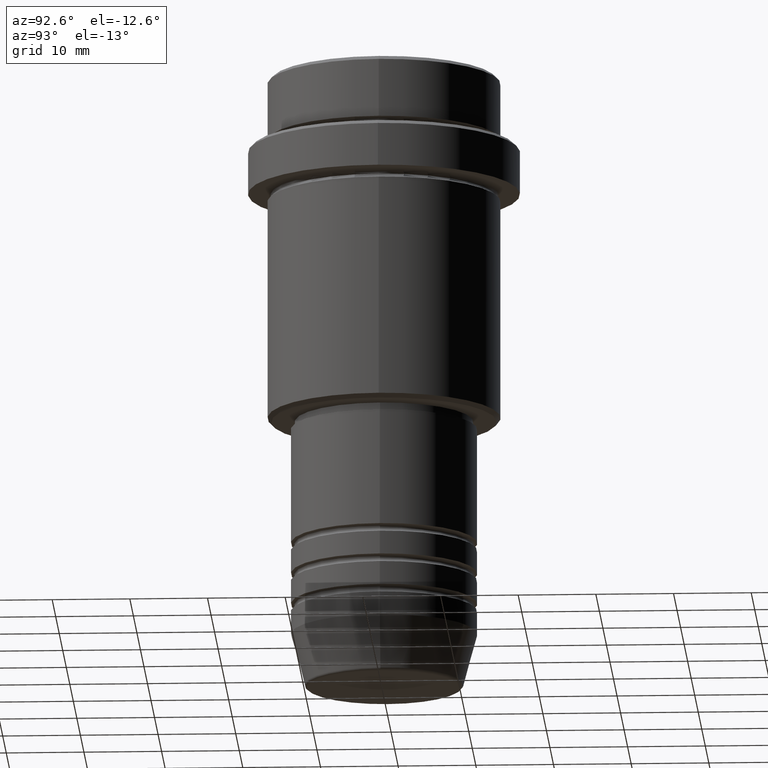
[diagram: clean part render]
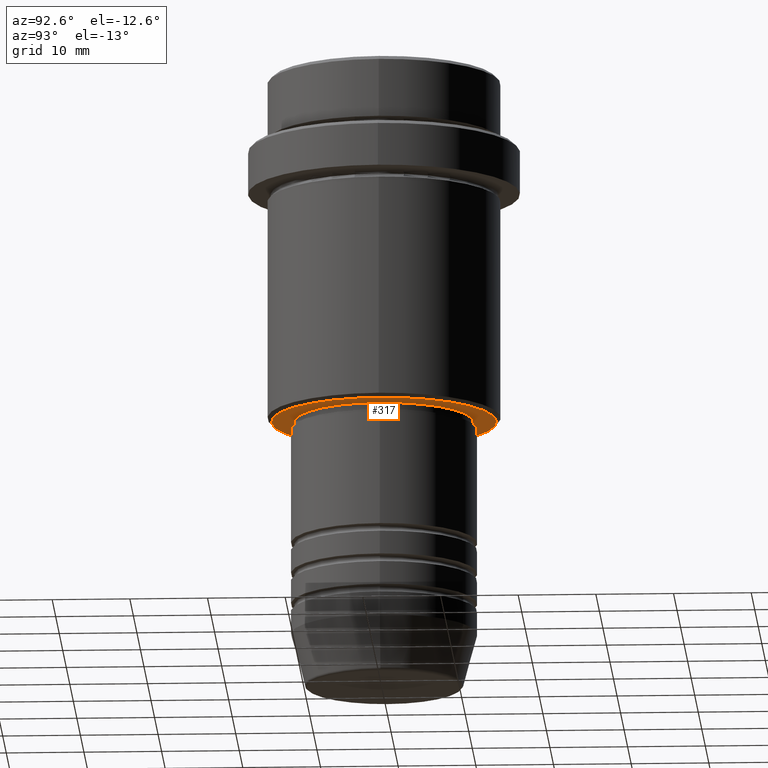
[diagram: same view with one face highlighted and labeled with its STEP entity id]
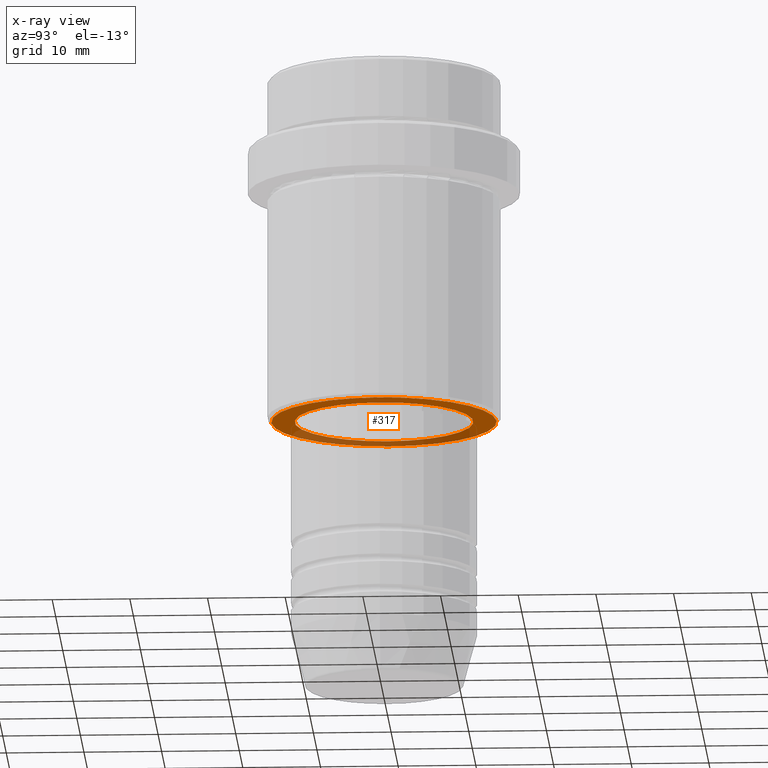
[diagram: x-ray of the same camera — body ghosted, the highlighted face saturated]
A machine part, auxiliary view. The second image highlights one B-rep face of the part: STEP entity #317.
The next image is the same camera in x-ray: the body ghosted, the highlighted face saturated — about 34% of this face is hidden behind the body in this view.
In plain terms, the highlighted planar face has unit normal (0, 0, -1).
Its self-contained STEP definition (entity closure, byte-faithful):
#57 = EDGE_LOOP ( 'NONE', ( #383, #411 ) ) ;
#126 = CIRCLE ( 'NONE', #614, 14.49999999999998401 ) ;
#146 = DIRECTION ( 'NONE',  ( -1.000000000000000000, 0.000000000000000000, -0.000000000000000000 ) ) ;
#156 = AXIS2_PLACEMENT_3D ( 'NONE', #955, #420, #187 ) ;
#187 = DIRECTION ( 'NONE',  ( 1.000000000000000000, 0.000000000000000000, 0.000000000000000000 ) ) ;
#190 = EDGE_CURVE ( 'NONE', #1326, #433, #126, .T. ) ;
#205 = DIRECTION ( 'NONE',  ( 0.000000000000000000, 0.000000000000000000, -1.000000000000000000 ) ) ;
#277 = CARTESIAN_POINT ( 'NONE',  ( 0.000000000000000000, 0.000000000000000000, -45.00000000000000000 ) ) ;
#317 = ADVANCED_FACE ( 'NONE', ( #995, #455 ), #1135, .T. ) ;
#362 = VERTEX_POINT ( 'NONE', #928 ) ;
#383 = ORIENTED_EDGE ( 'NONE', *, *, #190, .T. ) ;
#411 = ORIENTED_EDGE ( 'NONE', *, *, #718, .T. ) ;
#420 = DIRECTION ( 'NONE',  ( -0.000000000000000000, -0.000000000000000000, 1.000000000000000000 ) ) ;
#433 = VERTEX_POINT ( 'NONE', #712 ) ;
#455 = FACE_BOUND ( 'NONE', #748, .T. ) ;
#467 = CIRCLE ( 'NONE', #1252, 11.49999999999999467 ) ;
#595 = VERTEX_POINT ( 'NONE', #626 ) ;
#614 = AXIS2_PLACEMENT_3D ( 'NONE', #1193, #205, #1117 ) ;
#626 = CARTESIAN_POINT ( 'NONE',  ( 11.49999999999999467, 0.000000000000000000, -45.00000000000000000 ) ) ;
#652 = CARTESIAN_POINT ( 'NONE',  ( 0.000000000000000000, 15.00000000000000000, -45.00000000000000000 ) ) ;
#667 = CARTESIAN_POINT ( 'NONE',  ( 0.000000000000000000, 0.000000000000000000, -45.00000000000000000 ) ) ;
#712 = CARTESIAN_POINT ( 'NONE',  ( -14.49999999999998401, 1.806354028742345013E-15, -45.00000000000000000 ) ) ;
#718 = EDGE_CURVE ( 'NONE', #433, #1326, #1208, .T. ) ;
#748 = EDGE_LOOP ( 'NONE', ( #805, #1372 ) ) ;
#801 = EDGE_CURVE ( 'NONE', #362, #595, #467, .T. ) ;
#805 = ORIENTED_EDGE ( 'NONE', *, *, #1410, .T. ) ;
#885 = DIRECTION ( 'NONE',  ( 0.000000000000000000, 0.000000000000000000, -1.000000000000000000 ) ) ;
#892 = AXIS2_PLACEMENT_3D ( 'NONE', #652, #885, #146 ) ;
#928 = CARTESIAN_POINT ( 'NONE',  ( -11.49999999999999467, 1.408343819019455781E-15, -45.00000000000000000 ) ) ;
#955 = CARTESIAN_POINT ( 'NONE',  ( 0.000000000000000000, 0.000000000000000000, -45.00000000000000000 ) ) ;
#995 = FACE_OUTER_BOUND ( 'NONE', #57, .T. ) ;
#1013 = CIRCLE ( 'NONE', #156, 11.49999999999999467 ) ;
#1022 = DIRECTION ( 'NONE',  ( 0.000000000000000000, 0.000000000000000000, -1.000000000000000000 ) ) ;
#1117 = DIRECTION ( 'NONE',  ( -1.000000000000000000, 0.000000000000000000, 0.000000000000000000 ) ) ;
#1125 = AXIS2_PLACEMENT_3D ( 'NONE', #667, #1022, #1336 ) ;
#1135 = PLANE ( 'NONE',  #892 ) ;
#1193 = CARTESIAN_POINT ( 'NONE',  ( 0.000000000000000000, 0.000000000000000000, -45.00000000000000000 ) ) ;
#1208 = CIRCLE ( 'NONE', #1125, 14.49999999999998401 ) ;
#1232 = DIRECTION ( 'NONE',  ( 1.000000000000000000, 0.000000000000000000, 0.000000000000000000 ) ) ;
#1252 = AXIS2_PLACEMENT_3D ( 'NONE', #277, #1256, #1232 ) ;
#1256 = DIRECTION ( 'NONE',  ( -0.000000000000000000, -0.000000000000000000, 1.000000000000000000 ) ) ;
#1326 = VERTEX_POINT ( 'NONE', #1347 ) ;
#1336 = DIRECTION ( 'NONE',  ( -1.000000000000000000, 0.000000000000000000, 0.000000000000000000 ) ) ;
#1347 = CARTESIAN_POINT ( 'NONE',  ( 14.49999999999998401, 0.000000000000000000, -45.00000000000000000 ) ) ;
#1372 = ORIENTED_EDGE ( 'NONE', *, *, #801, .T. ) ;
#1410 = EDGE_CURVE ( 'NONE', #595, #362, #1013, .T. ) ;